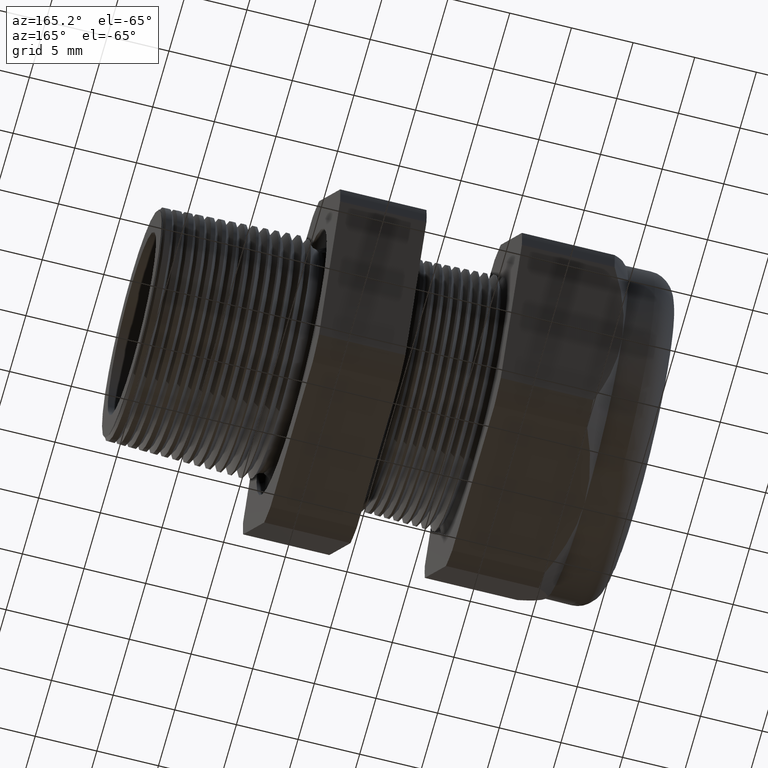
[diagram: clean part render]
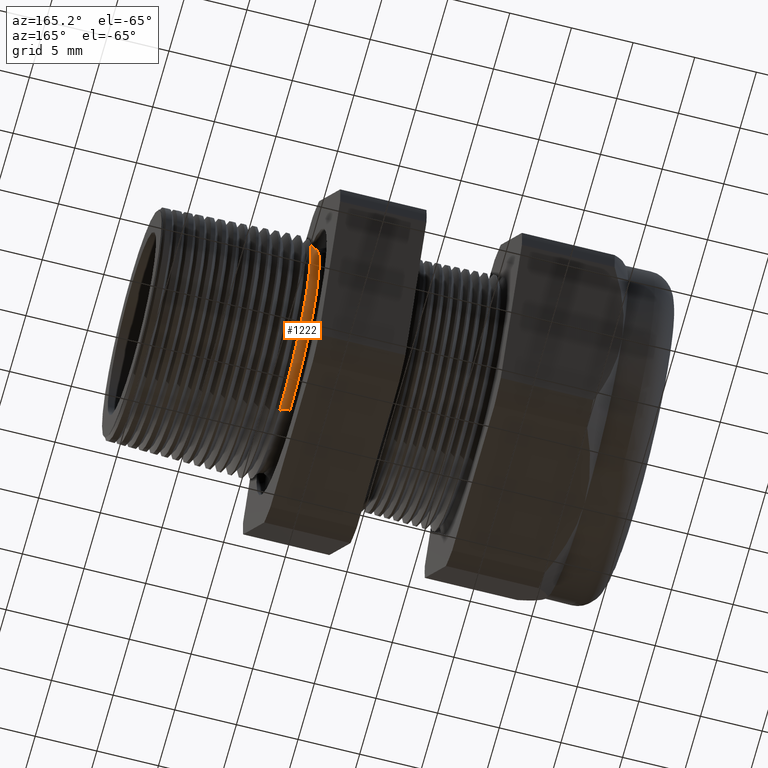
[diagram: same view with one face highlighted and labeled with its STEP entity id]
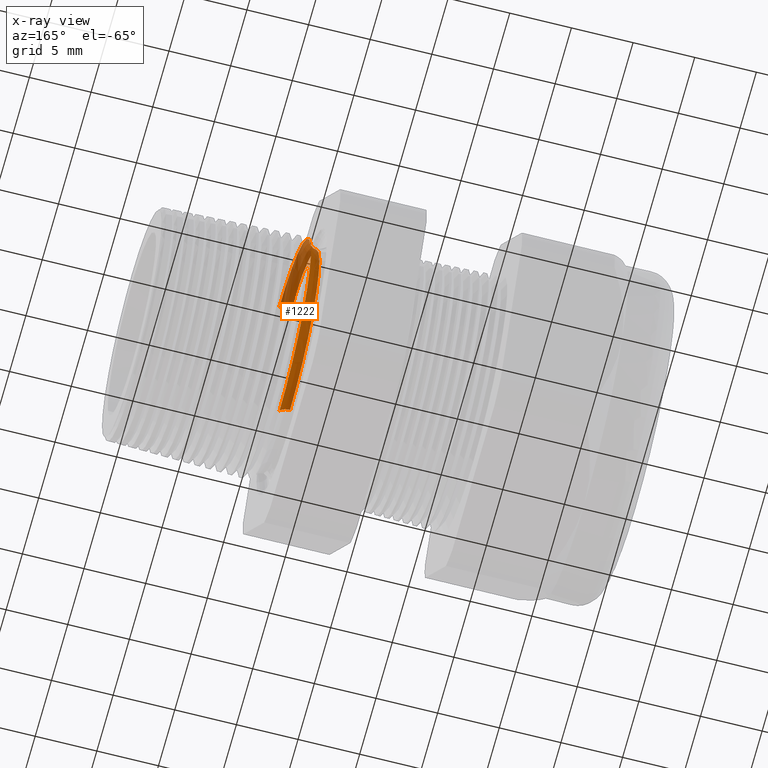
[diagram: x-ray of the same camera — body ghosted, the highlighted face saturated]
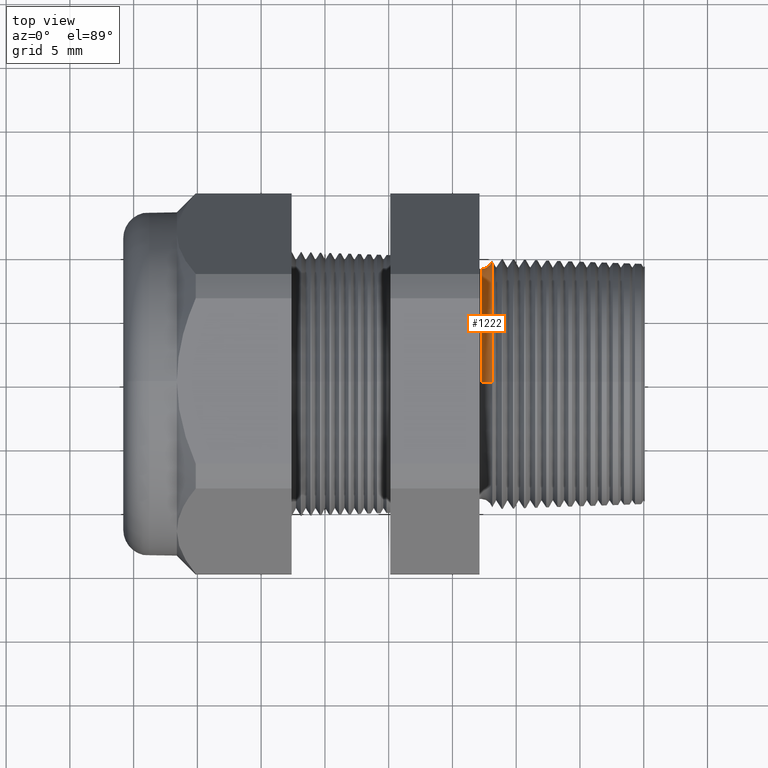
[diagram: same view with one face highlighted and labeled with its STEP entity id]
A machine part, auxiliary view. The second image highlights one B-rep face of the part: STEP entity #1222.
The next image is the same camera in x-ray: the body ghosted, the highlighted face saturated — about 32% of this face is hidden behind the body in this view.
A second angle (top view) of the same face is appended — the face is thin or edge-on in the first view.
In plain terms, the highlighted toroidal blend (fillet) surface has major radius 9.8993 mm and minor (blend) radius 0.889 mm.
Its self-contained STEP definition (entity closure, byte-faithful):
#1218 = ORIENTED_EDGE ( 'NONE', *, *, #1227, .T. ) ;
#1219 = EDGE_CURVE ( 'NONE', #1228, #1220, #3684, .T. ) ;
#1220 = VERTEX_POINT ( 'NONE', #3679 ) ;
#1221 = ORIENTED_EDGE ( 'NONE', *, *, #1224, .F. ) ;
#1222 = ADVANCED_FACE ( 'NONE', ( #3678 ), #3677, .F. ) ;
#1223 = VERTEX_POINT ( 'NONE', #3672 ) ;
#1224 = EDGE_CURVE ( 'NONE', #1223, #1278, #3671, .T. ) ;
#1227 = EDGE_CURVE ( 'NONE', #1223, #1228, #3659, .T. ) ;
#1228 = VERTEX_POINT ( 'NONE', #3719 ) ;
#1229 = ORIENTED_EDGE ( 'NONE', *, *, #1219, .T. ) ;
#1275 = EDGE_LOOP ( 'NONE', ( #1218, #1229, #1276, #1221 ) ) ;
#1276 = ORIENTED_EDGE ( 'NONE', *, *, #1277, .F. ) ;
#1277 = EDGE_CURVE ( 'NONE', #1278, #1220, #3782, .T. ) ;
#1278 = VERTEX_POINT ( 'NONE', #3777 ) ;
#3657 = DIRECTION ( 'NONE',  ( 0.0000000000000000000, -1.000000000000000000, 0.0000000000000000000 ) ) ;
#3658 = AXIS2_PLACEMENT_3D ( 'NONE', #3664, #3657, #3720 ) ;
#3659 = CIRCLE ( 'NONE', #3658, 0.03499999999999996900 ) ;
#3664 = CARTESIAN_POINT ( 'NONE',  ( -0.3049999999999998300, 0.0000000000000000000, -0.3897349550272340400 ) ) ;
#3667 = DIRECTION ( 'NONE',  ( 0.0000000000000000000, 0.0000000000000000000, 1.000000000000000000 ) ) ;
#3668 = DIRECTION ( 'NONE',  ( 1.000000000000000000, 0.0000000000000000000, 0.0000000000000000000 ) ) ;
#3669 = CARTESIAN_POINT ( 'NONE',  ( -0.2708719432804219100, 0.0000000000000000000, 0.0000000000000000000 ) ) ;
#3670 = AXIS2_PLACEMENT_3D ( 'NONE', #3669, #3668, #3667 ) ;
#3671 = CIRCLE ( 'NONE', #3670, 0.3819712095042733800 ) ;
#3672 = CARTESIAN_POINT ( 'NONE',  ( -0.2708719432804219100, 4.677798190858514200E-017, -0.3819712095042733800 ) ) ;
#3673 = DIRECTION ( 'NONE',  ( 0.0000000000000000000, 0.0000000000000000000, -1.000000000000000000 ) ) ;
#3674 = DIRECTION ( 'NONE',  ( 1.000000000000000000, 0.0000000000000000000, 0.0000000000000000000 ) ) ;
#3675 = CARTESIAN_POINT ( 'NONE',  ( -0.3049999999999998300, 0.0000000000000000000, 0.0000000000000000000 ) ) ;
#3676 = AXIS2_PLACEMENT_3D ( 'NONE', #3675, #3674, #3673 ) ;
#3677 = TOROIDAL_SURFACE ( 'NONE', #3676, 0.3897349550272340400, 0.03499999999999994800 ) ;
#3678 = FACE_OUTER_BOUND ( 'NONE', #1275, .T. ) ;
#3679 = CARTESIAN_POINT ( 'NONE',  ( -0.3049999999999998300, 4.344250272197825000E-017, 0.3547349550272340700 ) ) ;
#3680 = DIRECTION ( 'NONE',  ( 0.0000000000000000000, 0.0000000000000000000, -1.000000000000000000 ) ) ;
#3681 = DIRECTION ( 'NONE',  ( 1.000000000000000000, 0.0000000000000000000, 0.0000000000000000000 ) ) ;
#3682 = CARTESIAN_POINT ( 'NONE',  ( -0.3049999999999998300, 0.0000000000000000000, 0.0000000000000000000 ) ) ;
#3683 = AXIS2_PLACEMENT_3D ( 'NONE', #3682, #3681, #3680 ) ;
#3684 = CIRCLE ( 'NONE', #3683, 0.3547349550272340700 ) ;
#3719 = CARTESIAN_POINT ( 'NONE',  ( -0.3049999999999998300, 0.0000000000000000000, -0.3547349550272340700 ) ) ;
#3720 = DIRECTION ( 'NONE',  ( 0.0000000000000000000, 0.0000000000000000000, -1.000000000000000000 ) ) ;
#3777 = CARTESIAN_POINT ( 'NONE',  ( -0.2708719432804219100, 0.0000000000000000000, 0.3819712095042733800 ) ) ;
#3778 = DIRECTION ( 'NONE',  ( 0.0000000000000000000, 1.224646799147352700E-016, 1.000000000000000000 ) ) ;
#3779 = DIRECTION ( 'NONE',  ( 0.0000000000000000000, 1.000000000000000000, -1.224646799147353200E-016 ) ) ;
#3780 = CARTESIAN_POINT ( 'NONE',  ( -0.3049999999999998300, 4.772876651899397700E-017, 0.3897349550272340400 ) ) ;
#3781 = AXIS2_PLACEMENT_3D ( 'NONE', #3780, #3779, #3778 ) ;
#3782 = CIRCLE ( 'NONE', #3781, 0.03499999999999996900 ) ;